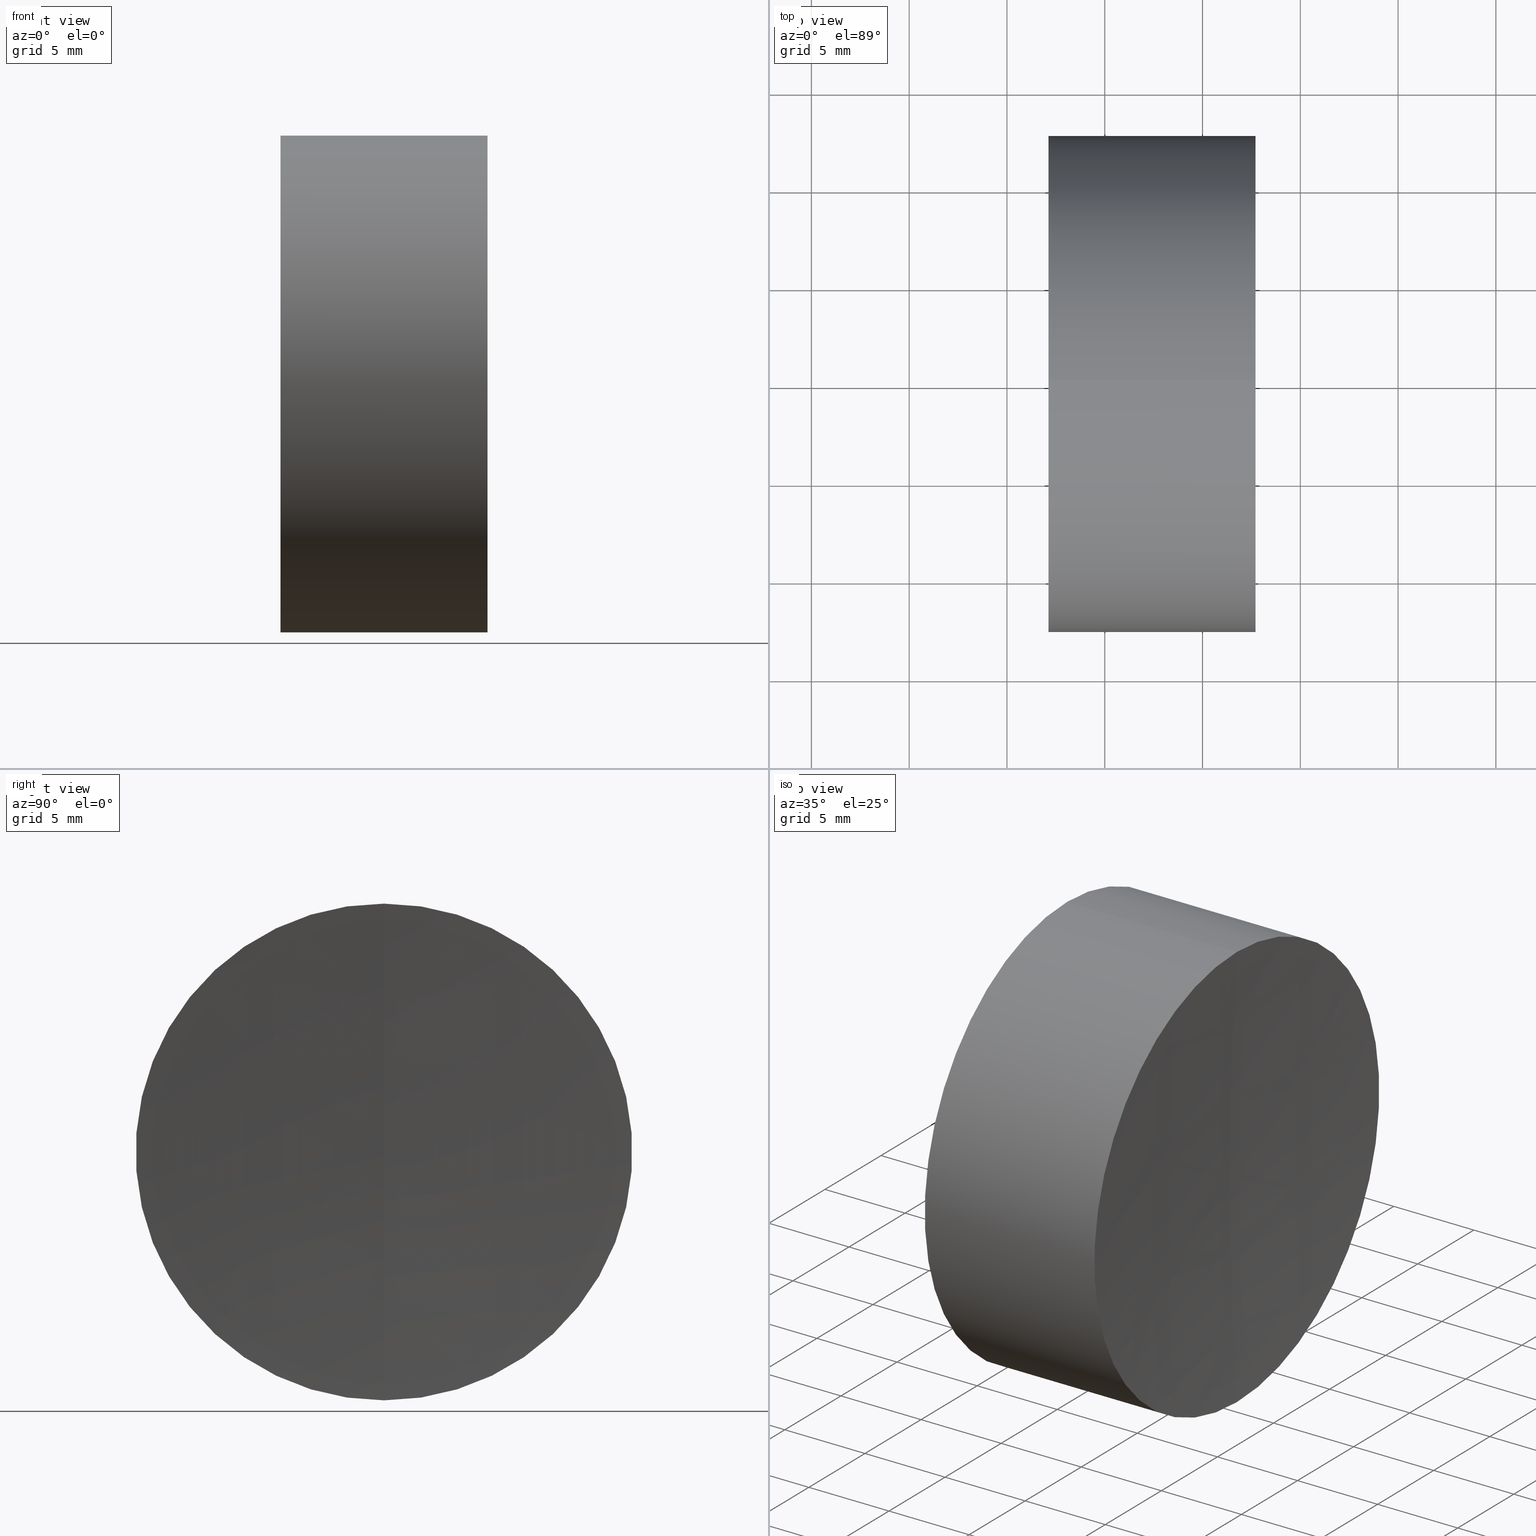
[diagram: canonical four-view strip — front | top / right | iso, engineering-drawing reading convention]
A machine part, canonical four-view strip (front | top / right | iso — engineering-drawing reading convention). The complete STEP part file that produces these views, byte-faithful:
ISO-10303-21;
HEADER;
FILE_DESCRIPTION (( 'STEP AP214' ),
    '1' );
FILE_NAME ('145197.STEP',
    '2019-06-13T07:11:28',
    ( 'user' ),
    ( '΢���й�' ),
    'SwSTEP 2.0',
    'SolidWorks 2016',
    '' );
FILE_SCHEMA (( 'AUTOMOTIVE_DESIGN' ));
ENDSEC;

DATA;
#1 = EDGE_CURVE ( 'NONE', #156, #158, #60, .T. ) ;
#2 = ORIENTED_EDGE ( 'NONE', *, *, #235, .T. ) ;
#3 = CARTESIAN_POINT ( 'NONE',  ( 267.7101150449228700, 0.0000000000000000000, 0.0000000000000000000 ) ) ;
#4 = DIRECTION ( 'NONE',  ( 0.0000000000000000000, 0.0000000000000000000, 1.000000000000000000 ) ) ;
#5 = SURFACE_STYLE_FILL_AREA ( #319 ) ;
#6 = ADVANCED_FACE ( 'NONE', ( #342 ), #205, .F. ) ;
#7 = EDGE_LOOP ( 'NONE', ( #76, #23, #260 ) ) ;
#8 = ORIENTED_EDGE ( 'NONE', *, *, #295, .T. ) ;
#9 = DIRECTION ( 'NONE',  ( 0.0000000000000000000, 1.000000000000000000, 0.0000000000000000000 ) ) ;
#10 = DIRECTION ( 'NONE',  ( -0.0000000000000000000, -1.000000000000000000, -0.0000000000000000000 ) ) ;
#11 =( GEOMETRIC_REPRESENTATION_CONTEXT ( 3 ) GLOBAL_UNCERTAINTY_ASSIGNED_CONTEXT ( ( #94 ) ) GLOBAL_UNIT_ASSIGNED_CONTEXT ( ( #87, #56, #227 ) ) REPRESENTATION_CONTEXT ( 'NONE', 'WORKASPACE' ) );
#12 = AXIS2_PLACEMENT_3D ( 'NONE', #249, #59, #230 ) ;
#13 = DIRECTION ( 'NONE',  ( 0.0000000000000000000, 0.0000000000000000000, 1.000000000000000000 ) ) ;
#14 = CARTESIAN_POINT ( 'NONE',  ( 233.1833917553725000, 0.0000000000000000000, -7.846294210438532900E-022 ) ) ;
#15 = ORIENTED_EDGE ( 'NONE', *, *, #235, .F. ) ;
#16 = EDGE_CURVE ( 'NONE', #320, #158, #213, .T. ) ;
#17 = ORIENTED_EDGE ( 'NONE', *, *, #67, .F. ) ;
#18 =( NAMED_UNIT ( * ) PLANE_ANGLE_UNIT ( ) SI_UNIT ( $, .RADIAN. ) );
#19 = FACE_OUTER_BOUND ( 'NONE', #133, .T. ) ;
#20 = DIRECTION ( 'NONE',  ( 0.0000000000000000000, -1.000000000000000000, 0.0000000000000000000 ) ) ;
#21 = FACE_OUTER_BOUND ( 'NONE', #191, .T. ) ;
#22 = AXIS2_PLACEMENT_3D ( 'NONE', #331, #143, #305 ) ;
#23 = ORIENTED_EDGE ( 'NONE', *, *, #126, .F. ) ;
#24 = AXIS2_PLACEMENT_3D ( 'NONE', #310, #117, #283 ) ;
#25 = CARTESIAN_POINT ( 'NONE',  ( 267.7101150449228700, 0.0000000000000000000, 12.69999999999999800 ) ) ;
#26 = UNCERTAINTY_MEASURE_WITH_UNIT (LENGTH_MEASURE( 1.000000000000000100E-005 ), #318, 'distance_accuracy_value', 'NONE');
#27 = CARTESIAN_POINT ( 'NONE',  ( 267.7101150449228700, 0.0000000000000000000, 0.0000000000000000000 ) ) ;
#28 = DIRECTION ( 'NONE',  ( 0.0000000000000000000, 0.0000000000000000000, 1.000000000000000000 ) ) ;
#29 = EDGE_CURVE ( 'NONE', #158, #320, #47, .T. ) ;
#30 = ADVANCED_FACE ( 'NONE', ( #337 ), #264, .F. ) ;
#31 = DIRECTION ( 'NONE',  ( 0.0000000000000000000, 0.0000000000000000000, 1.000000000000000000 ) ) ;
#32 = ORIENTED_EDGE ( 'NONE', *, *, #281, .F. ) ;
#33 = CARTESIAN_POINT ( 'NONE',  ( 265.4434669434605200, 0.0000000000000000000, 12.69999999999995000 ) ) ;
#34 = AXIS2_PLACEMENT_3D ( 'NONE', #258, #155, #35 ) ;
#35 = DIRECTION ( 'NONE',  ( 0.0000000000000000000, 0.0000000000000000000, -1.000000000000000000 ) ) ;
#36 = CIRCLE ( 'NONE', #132, 27.10000000000000500 ) ;
#37 = CARTESIAN_POINT ( 'NONE',  ( 257.1233165672844600, 1.555301434917135700E-015, -12.69999999999997400 ) ) ;
#38 = DIRECTION ( 'NONE',  ( -0.0000000000000000000, 1.000000000000000000, 0.0000000000000000000 ) ) ;
#39 = FACE_OUTER_BOUND ( 'NONE', #62, .T. ) ;
#40 = ORIENTED_EDGE ( 'NONE', *, *, #108, .F. ) ;
#41 = AXIS2_PLACEMENT_3D ( 'NONE', #142, #304, #112 ) ;
#42 = AXIS2_PLACEMENT_3D ( 'NONE', #173, #9, #31 ) ;
#43 = FACE_OUTER_BOUND ( 'NONE', #49, .T. ) ;
#44 = SURFACE_STYLE_USAGE ( .BOTH. , #239 ) ;
#45 = EDGE_CURVE ( 'NONE', #247, #120, #128, .T. ) ;
#46 = CIRCLE ( 'NONE', #22, 189.1999999999999900 ) ;
#47 = CIRCLE ( 'NONE', #12, 12.70000000000004500 ) ;
#48 = CARTESIAN_POINT ( 'NONE',  ( 257.1233165672844600, 0.0000000000000000000, 0.0000000000000000000 ) ) ;
#49 = EDGE_LOOP ( 'NONE', ( #32, #208, #252 ) ) ;
#50 = DIRECTION ( 'NONE',  ( -1.000000000000000000, -0.0000000000000000000, -0.0000000000000000000 ) ) ;
#51 = PRODUCT_DEFINITION_SHAPE ( 'NONE', 'NONE',  #177 ) ;
#52 = VERTEX_POINT ( 'NONE', #204 ) ;
#53 = AXIS2_PLACEMENT_3D ( 'NONE', #75, #38, #99 ) ;
#54 = CIRCLE ( 'NONE', #34, 27.10000000000000500 ) ;
#55 = ORIENTED_EDGE ( 'NONE', *, *, #147, .F. ) ;
#56 =( NAMED_UNIT ( * ) PLANE_ANGLE_UNIT ( ) SI_UNIT ( $, .RADIAN. ) );
#57 = FACE_OUTER_BOUND ( 'NONE', #232, .T. ) ;
#58 = ADVANCED_FACE ( 'NONE', ( #39 ), #190, .T. ) ;
#59 = DIRECTION ( 'NONE',  ( -1.000000000000000000, -0.0000000000000000000, 1.836970198721029700E-016 ) ) ;
#60 = CIRCLE ( 'NONE', #312, 27.09999999999998000 ) ;
#61 = DIRECTION ( 'NONE',  ( 0.0000000000000000000, 0.0000000000000000000, 1.000000000000000000 ) ) ;
#62 = EDGE_LOOP ( 'NONE', ( #81, #244, #211 ) ) ;
#63 = PRESENTATION_STYLE_ASSIGNMENT (( #44 ) ) ;
#64 = DIRECTION ( 'NONE',  ( 0.0000000000000000000, 1.000000000000000000, 0.0000000000000000000 ) ) ;
#65 = DIRECTION ( 'NONE',  ( 0.0000000000000000000, 0.0000000000000000000, 1.000000000000000000 ) ) ;
#66 = AXIS2_PLACEMENT_3D ( 'NONE', #27, #196, #4 ) ;
#67 = EDGE_CURVE ( 'NONE', #136, #176, #326, .T. ) ;
#68 = AXIS2_PLACEMENT_3D ( 'NONE', #170, #333, #145 ) ;
#69 = DIRECTION ( 'NONE',  ( 0.0000000000000000000, -1.224646799147353500E-016, 1.000000000000000000 ) ) ;
#70 = MANIFOLD_SOLID_BREP ( '��ת3', #292 ) ;
#71 = CARTESIAN_POINT ( 'NONE',  ( 289.3833917553725400, 0.0000000000000000000, -7.774855670941042100E-022 ) ) ;
#72 = FACE_OUTER_BOUND ( 'NONE', #111, .T. ) ;
#73 = DIRECTION ( 'NONE',  ( -1.000000000000000000, -0.0000000000000000000, -0.0000000000000000000 ) ) ;
#74 = EDGE_CURVE ( 'NONE', #328, #52, #46, .T. ) ;
#75 = CARTESIAN_POINT ( 'NONE',  ( 233.1833917553725000, 0.0000000000000000000, -7.846294210438532900E-022 ) ) ;
#76 = ORIENTED_EDGE ( 'NONE', *, *, #74, .F. ) ;
#77 = AXIS2_PLACEMENT_3D ( 'NONE', #96, #289, #13 ) ;
#78 = COLOUR_RGB ( '',1.000000000000000000, 1.000000000000000000, 1.000000000000000000 ) ;
#79 = APPLICATION_PROTOCOL_DEFINITION ( 'draft international standard', 'automotive_design', 1998, #269 ) ;
#80 = FILL_AREA_STYLE ('',( #302 ) ) ;
#81 = ORIENTED_EDGE ( 'NONE', *, *, #253, .T. ) ;
#82 = CARTESIAN_POINT ( 'NONE',  ( -0.8160621761658039000, 0.0000000000000000000, 0.0000000000000000000 ) ) ;
#83 = DIRECTION ( 'NONE',  ( 0.0000000000000000000, 1.224646799147353500E-016, -1.000000000000000000 ) ) ;
#84 = AXIS2_PLACEMENT_3D ( 'NONE', #199, #168, #28 ) ;
#85 = AXIS2_PLACEMENT_3D ( 'NONE', #172, #336, #248 ) ;
#86 = CARTESIAN_POINT ( 'NONE',  ( 265.4434669434605200, 1.555301434917132300E-015, -12.69999999999995000 ) ) ;
#87 =( LENGTH_UNIT ( ) NAMED_UNIT ( * ) SI_UNIT ( .MILLI., .METRE. ) );
#88 = ADVANCED_FACE ( 'NONE', ( #125 ), #270, .T. ) ;
#89 = ORIENTED_EDGE ( 'NONE', *, *, #1, .T. ) ;
#90 = EDGE_CURVE ( 'NONE', #328, #129, #340, .T. ) ;
#91 = ORIENTED_EDGE ( 'NONE', *, *, #147, .T. ) ;
#92 = CARTESIAN_POINT ( 'NONE',  ( 260.2833917553724600, 0.0000000000000000000, -3.318793610318745300E-015 ) ) ;
#93 = DIRECTION ( 'NONE',  ( 2.249639673992786400E-032, 1.000000000000000000, 1.224646799147353200E-016 ) ) ;
#94 = UNCERTAINTY_MEASURE_WITH_UNIT (LENGTH_MEASURE( 1.000000000000000100E-005 ), #87, 'distance_accuracy_value', 'NONE');
#95 = AXIS2_PLACEMENT_3D ( 'NONE', #121, #73, #65 ) ;
#96 = CARTESIAN_POINT ( 'NONE',  ( 265.4434669434605200, 0.0000000000000000000, 0.0000000000000000000 ) ) ;
#97 = ORIENTED_EDGE ( 'NONE', *, *, #126, .T. ) ;
#98 = SHAPE_DEFINITION_REPRESENTATION ( #51, #321 ) ;
#99 = DIRECTION ( 'NONE',  ( 0.0000000000000000000, 0.0000000000000000000, 1.000000000000000000 ) ) ;
#100 = DIRECTION ( 'NONE',  ( 1.878145495644173900E-016, 0.0000000000000000000, 1.000000000000000000 ) ) ;
#101 = ORIENTED_EDGE ( 'NONE', *, *, #281, .T. ) ;
#102 =( GEOMETRIC_REPRESENTATION_CONTEXT ( 3 ) GLOBAL_UNCERTAINTY_ASSIGNED_CONTEXT ( ( #130 ) ) GLOBAL_UNIT_ASSIGNED_CONTEXT ( ( #218, #18, #187 ) ) REPRESENTATION_CONTEXT ( 'NONE', 'WORKASPACE' ) );
#103 = AXIS2_PLACEMENT_3D ( 'NONE', #3, #165, #288 ) ;
#104 = STYLED_ITEM ( 'NONE', ( #110 ), #70 ) ;
#105 = PRODUCT_CONTEXT ( 'NONE', #271, 'mechanical' ) ;
#106 = FACE_OUTER_BOUND ( 'NONE', #162, .T. ) ;
#107 = ORIENTED_EDGE ( 'NONE', *, *, #298, .F. ) ;
#108 = EDGE_CURVE ( 'NONE', #129, #52, #296, .T. ) ;
#109 = DIRECTION ( 'NONE',  ( -0.0000000000000000000, 1.000000000000000000, 0.0000000000000000000 ) ) ;
#110 = PRESENTATION_STYLE_ASSIGNMENT (( #280 ) ) ;
#111 = EDGE_LOOP ( 'NONE', ( #91, #339, #285, #206 ) ) ;
#112 = DIRECTION ( 'NONE',  ( 0.0000000000000000000, 0.0000000000000000000, -1.000000000000000000 ) ) ;
#113 = AXIS2_PLACEMENT_3D ( 'NONE', #254, #275, #83 ) ;
#114 = SPHERICAL_SURFACE ( 'NONE', #153, 27.10000000000000500 ) ;
#115 = SURFACE_SIDE_STYLE ('',( #250 ) ) ;
#116 = ADVANCED_FACE ( 'NONE', ( #203 ), #282, .F. ) ;
#117 = DIRECTION ( 'NONE',  ( -1.000000000000000000, -0.0000000000000000000, 1.836970198721029700E-016 ) ) ;
#118 = DIRECTION ( 'NONE',  ( 0.0000000000000000000, 0.0000000000000000000, 1.000000000000000000 ) ) ;
#119 = COLOUR_RGB ( '',1.000000000000000000, 1.000000000000000000, 1.000000000000000000 ) ;
#120 = VERTEX_POINT ( 'NONE', #166 ) ;
#121 = CARTESIAN_POINT ( 'NONE',  ( 265.4434669434605200, 0.0000000000000000000, 0.0000000000000000000 ) ) ;
#122 = AXIS2_PLACEMENT_3D ( 'NONE', #225, #330, #277 ) ;
#123 = PRESENTATION_LAYER_ASSIGNMENT (  '', '', ( #104 ) ) ;
#124 = CIRCLE ( 'NONE', #95, 12.69999999999995100 ) ;
#125 = FACE_OUTER_BOUND ( 'NONE', #221, .T. ) ;
#126 = EDGE_CURVE ( 'NONE', #129, #328, #135, .T. ) ;
#127 = DIRECTION ( 'NONE',  ( 0.0000000000000000000, 0.0000000000000000000, 1.000000000000000000 ) ) ;
#128 = CIRCLE ( 'NONE', #24, 12.70000000000004700 ) ;
#129 = VERTEX_POINT ( 'NONE', #25 ) ;
#130 = UNCERTAINTY_MEASURE_WITH_UNIT (LENGTH_MEASURE( 1.000000000000000100E-005 ), #218, 'distance_accuracy_value', 'NONE');
#131 = LINE ( 'NONE', #37, #267 ) ;
#132 = AXIS2_PLACEMENT_3D ( 'NONE', #303, #109, #273 ) ;
#133 = EDGE_LOOP ( 'NONE', ( #97, #2, #313, #278 ) ) ;
#134 = DIRECTION ( 'NONE',  ( 1.000000000000000000, 0.0000000000000000000, 0.0000000000000000000 ) ) ;
#135 = CIRCLE ( 'NONE', #103, 12.69999999999999800 ) ;
#136 = VERTEX_POINT ( 'NONE', #86 ) ;
#137 = DIRECTION ( 'NONE',  ( 0.0000000000000000000, 0.0000000000000000000, 1.000000000000000000 ) ) ;
#138 = ORIENTED_EDGE ( 'NONE', *, *, #74, .T. ) ;
#139 = DIRECTION ( 'NONE',  ( -1.000000000000000000, -0.0000000000000000000, 1.836970198721029700E-016 ) ) ;
#140 = AXIS2_PLACEMENT_3D ( 'NONE', #175, #179, #255 ) ;
#141 = MECHANICAL_DESIGN_GEOMETRIC_PRESENTATION_REPRESENTATION (  '', ( #104 ), #11 ) ;
#142 = CARTESIAN_POINT ( 'NONE',  ( 456.4833917553725100, 0.0000000000000000000, -2.441456779568677200E-014 ) ) ;
#143 = DIRECTION ( 'NONE',  ( -0.0000000000000000000, 1.000000000000000000, 1.224646799147353200E-016 ) ) ;
#144 = FACE_OUTER_BOUND ( 'NONE', #286, .T. ) ;
#145 = DIRECTION ( 'NONE',  ( 0.0000000000000000000, -1.224646799147353500E-016, 1.000000000000000000 ) ) ;
#146 = ADVANCED_FACE ( 'NONE', ( #57 ), #262, .T. ) ;
#147 = EDGE_CURVE ( 'NONE', #120, #247, #347, .T. ) ;
#148 = SURFACE_STYLE_FILL_AREA ( #80 ) ;
#149 = CARTESIAN_POINT ( 'NONE',  ( 257.1233165672844600, 0.0000000000000000000, -4.738269518283348700E-014 ) ) ;
#150 = VERTEX_POINT ( 'NONE', #33 ) ;
#151 = DIRECTION ( 'NONE',  ( 0.0000000000000000000, 1.000000000000000000, 0.0000000000000000000 ) ) ;
#152 = CARTESIAN_POINT ( 'NONE',  ( 262.2833917553725200, 0.0000000000000000000, 1.659395635359096900E-015 ) ) ;
#153 = AXIS2_PLACEMENT_3D ( 'NONE', #71, #10, #243 ) ;
#154 = CYLINDRICAL_SURFACE ( 'NONE', #233, 12.70000000000004700 ) ;
#155 = DIRECTION ( 'NONE',  ( 0.0000000000000000000, -1.000000000000000000, 0.0000000000000000000 ) ) ;
#156 = VERTEX_POINT ( 'NONE', #92 ) ;
#157 =( NAMED_UNIT ( * ) PLANE_ANGLE_UNIT ( ) SI_UNIT ( $, .RADIAN. ) );
#158 = VERTEX_POINT ( 'NONE', #183 ) ;
#159 = AXIS2_PLACEMENT_3D ( 'NONE', #161, #323, #134 ) ;
#160 = AXIS2_PLACEMENT_3D ( 'NONE', #193, #64, #251 ) ;
#161 = CARTESIAN_POINT ( 'NONE',  ( 0.0000000000000000000, 0.0000000000000000000, 0.0000000000000000000 ) ) ;
#162 = EDGE_LOOP ( 'NONE', ( #300, #214, #346, #234 ) ) ;
#163 =( NAMED_UNIT ( * ) PLANE_ANGLE_UNIT ( ) SI_UNIT ( $, .RADIAN. ) );
#164 = DIRECTION ( 'NONE',  ( -1.000000000000000000, -0.0000000000000000000, 1.836970198721029700E-016 ) ) ;
#165 = DIRECTION ( 'NONE',  ( -1.000000000000000000, -0.0000000000000000000, -0.0000000000000000000 ) ) ;
#166 = CARTESIAN_POINT ( 'NONE',  ( 265.4434669434605200, 0.0000000000000000000, 12.69999999999999900 ) ) ;
#167 = AXIS2_PLACEMENT_3D ( 'NONE', #219, #20, #188 ) ;
#168 = DIRECTION ( 'NONE',  ( -1.000000000000000000, -0.0000000000000000000, -0.0000000000000000000 ) ) ;
#169 = EDGE_LOOP ( 'NONE', ( #55, #101, #107 ) ) ;
#170 = CARTESIAN_POINT ( 'NONE',  ( 289.3833917553725400, 0.0000000000000000000, -7.774855670941042100E-022 ) ) ;
#171 = ADVANCED_FACE ( 'NONE', ( #144 ), #217, .F. ) ;
#172 = CARTESIAN_POINT ( 'NONE',  ( 289.3833917553725400, 0.0000000000000000000, -7.774855670941042100E-022 ) ) ;
#173 = CARTESIAN_POINT ( 'NONE',  ( 456.4833917553725100, 0.0000000000000000000, -2.441456779568677200E-014 ) ) ;
#174 = CARTESIAN_POINT ( 'NONE',  ( 456.4833917553725100, 0.0000000000000000000, -2.441456779568677200E-014 ) ) ;
#175 = CARTESIAN_POINT ( 'NONE',  ( 265.4434669434605200, 0.0000000000000000000, -4.891108201182477700E-014 ) ) ;
#176 = VERTEX_POINT ( 'NONE', #152 ) ;
#177 = PRODUCT_DEFINITION ( 'δ֪', '', #192, #197 ) ;
#178 = PRESENTATION_LAYER_ASSIGNMENT (  '', '', ( #216 ) ) ;
#179 = DIRECTION ( 'NONE',  ( -1.000000000000000000, -0.0000000000000000000, 1.836970198721029700E-016 ) ) ;
#180 = VECTOR ( 'NONE', #164, 1000.000000000000000 ) ;
#181 = CARTESIAN_POINT ( 'NONE',  ( 265.4434669434605200, 1.555301434917144500E-015, -12.70000000000009700 ) ) ;
#182 = SURFACE_STYLE_USAGE ( .BOTH. , #341 ) ;
#183 = CARTESIAN_POINT ( 'NONE',  ( 257.1233165672844600, 1.555301434917144000E-015, -12.70000000000004900 ) ) ;
#184 = ORIENTED_EDGE ( 'NONE', *, *, #259, .T. ) ;
#185 =( GEOMETRIC_REPRESENTATION_CONTEXT ( 3 ) GLOBAL_UNCERTAINTY_ASSIGNED_CONTEXT ( ( #195 ) ) GLOBAL_UNIT_ASSIGNED_CONTEXT ( ( #241, #163, #324 ) ) REPRESENTATION_CONTEXT ( 'NONE', 'WORKASPACE' ) );
#186 = LINE ( 'NONE', #209, #246 ) ;
#187 =( NAMED_UNIT ( * ) SI_UNIT ( $, .STERADIAN. ) SOLID_ANGLE_UNIT ( ) );
#188 = DIRECTION ( 'NONE',  ( 0.0000000000000000000, 0.0000000000000000000, -1.000000000000000000 ) ) ;
#189 = CARTESIAN_POINT ( 'NONE',  ( 267.7101150449228700, 1.555301434917138200E-015, -12.69999999999999800 ) ) ;
#190 = SPHERICAL_SURFACE ( 'NONE', #85, 27.10000000000000500 ) ;
#191 = EDGE_LOOP ( 'NONE', ( #240, #89, #200 ) ) ;
#192 = PRODUCT_DEFINITION_FORMATION_WITH_SPECIFIED_SOURCE ( '�κ�', '', #236, .NOT_KNOWN. ) ;
#193 = CARTESIAN_POINT ( 'NONE',  ( 289.3833917553725400, 0.0000000000000000000, -7.774855670941042100E-022 ) ) ;
#194 = AXIS2_PLACEMENT_3D ( 'NONE', #14, #343, #127 ) ;
#195 = UNCERTAINTY_MEASURE_WITH_UNIT (LENGTH_MEASURE( 1.000000000000000100E-005 ), #241, 'distance_accuracy_value', 'NONE');
#196 = DIRECTION ( 'NONE',  ( -1.000000000000000000, -0.0000000000000000000, -0.0000000000000000000 ) ) ;
#197 = PRODUCT_DEFINITION_CONTEXT ( 'detailed design', #269, 'design' ) ;
#198 = LINE ( 'NONE', #315, #256 ) ;
#199 = CARTESIAN_POINT ( 'NONE',  ( 257.1233165672844600, 0.0000000000000000000, 0.0000000000000000000 ) ) ;
#200 = ORIENTED_EDGE ( 'NONE', *, *, #29, .T. ) ;
#201 = FILL_AREA_STYLE_COLOUR ( '', #119 ) ;
#202 = ADVANCED_FACE ( 'NONE', ( #72 ), #154, .T. ) ;
#203 = FACE_OUTER_BOUND ( 'NONE', #169, .T. ) ;
#204 = CARTESIAN_POINT ( 'NONE',  ( 267.2833917553725200, 0.0000000000000000000, -1.282940907575281200E-014 ) ) ;
#205 = SPHERICAL_SURFACE ( 'NONE', #345, 189.1999999999999900 ) ;
#206 = ORIENTED_EDGE ( 'NONE', *, *, #276, .F. ) ;
#207 = DIRECTION ( 'NONE',  ( -1.000000000000000000, -0.0000000000000000000, 1.836970198721029700E-016 ) ) ;
#208 = ORIENTED_EDGE ( 'NONE', *, *, #45, .F. ) ;
#209 = CARTESIAN_POINT ( 'NONE',  ( 257.1233165672844600, 0.0000000000000000000, 12.69999999999997400 ) ) ;
#210 = SPHERICAL_SURFACE ( 'NONE', #53, 27.09999999999998000 ) ;
#211 = ORIENTED_EDGE ( 'NONE', *, *, #237, .F. ) ;
#212 = AXIS2_PLACEMENT_3D ( 'NONE', #82, #139, #327 ) ;
#213 = CIRCLE ( 'NONE', #329, 12.70000000000004500 ) ;
#214 = ORIENTED_EDGE ( 'NONE', *, *, #45, .T. ) ;
#215 = PRODUCT_RELATED_PRODUCT_CATEGORY ( 'part', '', ( #236 ) ) ;
#216 = STYLED_ITEM ( 'NONE', ( #290 ), #224 ) ;
#217 = SPHERICAL_SURFACE ( 'NONE', #194, 27.09999999999998000 ) ;
#218 =( LENGTH_UNIT ( ) NAMED_UNIT ( * ) SI_UNIT ( .MILLI., .METRE. ) );
#219 = CARTESIAN_POINT ( 'NONE',  ( 233.1833917553725000, 0.0000000000000000000, -7.846294210438532900E-022 ) ) ;
#220 = COLOUR_RGB ( '',1.000000000000000000, 1.000000000000000000, 1.000000000000000000 ) ;
#221 = EDGE_LOOP ( 'NONE', ( #15, #344, #8, #307 ) ) ;
#222 = CARTESIAN_POINT ( 'NONE',  ( 257.1233165672844600, 0.0000000000000000000, 12.69999999999999900 ) ) ;
#223 = CARTESIAN_POINT ( 'NONE',  ( 262.2833917553725200, 0.0000000000000000000, 3.318792048203760200E-015 ) ) ;
#224 = MANIFOLD_SOLID_BREP ( '��ת1', #268 ) ;
#225 = CARTESIAN_POINT ( 'NONE',  ( 289.3833917553725400, 0.0000000000000000000, -7.774855670941042100E-022 ) ) ;
#226 = AXIS2_PLACEMENT_3D ( 'NONE', #48, #325, #137 ) ;
#227 =( NAMED_UNIT ( * ) SI_UNIT ( $, .STERADIAN. ) SOLID_ANGLE_UNIT ( ) );
#228 = ADVANCED_FACE ( 'NONE', ( #21 ), #210, .F. ) ;
#229 = ORIENTED_EDGE ( 'NONE', *, *, #90, .F. ) ;
#230 = DIRECTION ( 'NONE',  ( 0.0000000000000000000, 0.0000000000000000000, 1.000000000000000000 ) ) ;
#231 = ORIENTED_EDGE ( 'NONE', *, *, #1, .F. ) ;
#232 = EDGE_LOOP ( 'NONE', ( #17, #184, #294 ) ) ;
#233 = AXIS2_PLACEMENT_3D ( 'NONE', #293, #207, #100 ) ;
#234 = ORIENTED_EDGE ( 'NONE', *, *, #29, .F. ) ;
#235 = EDGE_CURVE ( 'NONE', #328, #136, #131, .T. ) ;
#236 = PRODUCT ( '145197', '145197', '', ( #105 ) ) ;
#237 = EDGE_CURVE ( 'NONE', #150, #176, #54, .T. ) ;
#238 = CYLINDRICAL_SURFACE ( 'NONE', #212, 12.70000000000004700 ) ;
#239 = SURFACE_SIDE_STYLE ('',( #148 ) ) ;
#240 = ORIENTED_EDGE ( 'NONE', *, *, #335, .F. ) ;
#241 =( LENGTH_UNIT ( ) NAMED_UNIT ( * ) SI_UNIT ( .MILLI., .METRE. ) );
#242 = CARTESIAN_POINT ( 'NONE',  ( -0.8160621761658063400, 1.555301434917144500E-015, -12.70000000000004700 ) ) ;
#243 = DIRECTION ( 'NONE',  ( 0.0000000000000000000, 0.0000000000000000000, -1.000000000000000000 ) ) ;
#244 = ORIENTED_EDGE ( 'NONE', *, *, #67, .T. ) ;
#245 = MECHANICAL_DESIGN_GEOMETRIC_PRESENTATION_REPRESENTATION (  '', ( #216 ), #266 ) ;
#246 = VECTOR ( 'NONE', #50, 1000.000000000000000 ) ;
#247 = VERTEX_POINT ( 'NONE', #181 ) ;
#248 = DIRECTION ( 'NONE',  ( 0.0000000000000000000, 0.0000000000000000000, 1.000000000000000000 ) ) ;
#249 = CARTESIAN_POINT ( 'NONE',  ( 257.1233165672844600, 0.0000000000000000000, -4.738269518283348700E-014 ) ) ;
#250 = SURFACE_STYLE_FILL_AREA ( #306 ) ;
#251 = DIRECTION ( 'NONE',  ( 0.0000000000000000000, 0.0000000000000000000, 1.000000000000000000 ) ) ;
#252 = ORIENTED_EDGE ( 'NONE', *, *, #298, .T. ) ;
#253 = EDGE_CURVE ( 'NONE', #150, #136, #338, .T. ) ;
#254 = CARTESIAN_POINT ( 'NONE',  ( 289.3833917553725400, 0.0000000000000000000, -7.774855670941042100E-022 ) ) ;
#255 = DIRECTION ( 'NONE',  ( 0.0000000000000000000, 0.0000000000000000000, 1.000000000000000000 ) ) ;
#256 = VECTOR ( 'NONE', #314, 1000.000000000000000 ) ;
#257 = STYLED_ITEM ( 'NONE', ( #63 ), #321 ) ;
#258 = CARTESIAN_POINT ( 'NONE',  ( 289.3833917553725400, 0.0000000000000000000, -7.774855670941042100E-022 ) ) ;
#259 = EDGE_CURVE ( 'NONE', #136, #150, #124, .T. ) ;
#260 = ORIENTED_EDGE ( 'NONE', *, *, #108, .T. ) ;
#261 = DIRECTION ( 'NONE',  ( -1.000000000000000000, -0.0000000000000000000, -0.0000000000000000000 ) ) ;
#262 = SPHERICAL_SURFACE ( 'NONE', #160, 27.10000000000000500 ) ;
#263 = FILL_AREA_STYLE_COLOUR ( '', #78 ) ;
#264 = SPHERICAL_SURFACE ( 'NONE', #42, 189.1999999999999900 ) ;
#265 = ORIENTED_EDGE ( 'NONE', *, *, #16, .T. ) ;
#266 =( GEOMETRIC_REPRESENTATION_CONTEXT ( 3 ) GLOBAL_UNCERTAINTY_ASSIGNED_CONTEXT ( ( #26 ) ) GLOBAL_UNIT_ASSIGNED_CONTEXT ( ( #318, #157, #291 ) ) REPRESENTATION_CONTEXT ( 'NONE', 'WORKASPACE' ) );
#267 = VECTOR ( 'NONE', #261, 1000.000000000000000 ) ;
#268 = CLOSED_SHELL ( 'NONE', ( #116, #202, #228, #171, #308, #284 ) ) ;
#269 = APPLICATION_CONTEXT ( 'automotive_design' ) ;
#270 = CYLINDRICAL_SURFACE ( 'NONE', #84, 12.69999999999997400 ) ;
#271 = APPLICATION_CONTEXT ( 'automotive_design' ) ;
#272 = ORIENTED_EDGE ( 'NONE', *, *, #335, .T. ) ;
#273 = DIRECTION ( 'NONE',  ( 0.0000000000000000000, 0.0000000000000000000, 1.000000000000000000 ) ) ;
#274 = EDGE_LOOP ( 'NONE', ( #229, #138, #40 ) ) ;
#275 = DIRECTION ( 'NONE',  ( -2.249639673992786400E-032, -1.000000000000000000, -1.224646799147353200E-016 ) ) ;
#276 = EDGE_CURVE ( 'NONE', #120, #320, #198, .T. ) ;
#277 = DIRECTION ( 'NONE',  ( 0.0000000000000000000, 0.0000000000000000000, -1.000000000000000000 ) ) ;
#278 = ORIENTED_EDGE ( 'NONE', *, *, #295, .F. ) ;
#279 = PRESENTATION_LAYER_ASSIGNMENT (  '', '', ( #257 ) ) ;
#280 = SURFACE_STYLE_USAGE ( .BOTH. , #115 ) ;
#281 = EDGE_CURVE ( 'NONE', #120, #301, #332, .T. ) ;
#282 = SPHERICAL_SURFACE ( 'NONE', #122, 27.10000000000000500 ) ;
#283 = DIRECTION ( 'NONE',  ( 0.0000000000000000000, 0.0000000000000000000, 1.000000000000000000 ) ) ;
#284 = ADVANCED_FACE ( 'NONE', ( #43 ), #114, .F. ) ;
#285 = ORIENTED_EDGE ( 'NONE', *, *, #16, .F. ) ;
#286 = EDGE_LOOP ( 'NONE', ( #231, #272, #265 ) ) ;
#287 = CARTESIAN_POINT ( 'NONE',  ( 233.1833917553725000, 0.0000000000000000000, -7.846294210438532900E-022 ) ) ;
#288 = DIRECTION ( 'NONE',  ( 0.0000000000000000000, 0.0000000000000000000, 1.000000000000000000 ) ) ;
#289 = DIRECTION ( 'NONE',  ( -1.000000000000000000, -0.0000000000000000000, -0.0000000000000000000 ) ) ;
#290 = PRESENTATION_STYLE_ASSIGNMENT (( #182 ) ) ;
#291 =( NAMED_UNIT ( * ) SI_UNIT ( $, .STERADIAN. ) SOLID_ANGLE_UNIT ( ) );
#292 = CLOSED_SHELL ( 'NONE', ( #6, #334, #58, #146, #88, #30 ) ) ;
#293 = CARTESIAN_POINT ( 'NONE',  ( -0.8160621761658039000, 0.0000000000000000000, 0.0000000000000000000 ) ) ;
#294 = ORIENTED_EDGE ( 'NONE', *, *, #237, .T. ) ;
#295 = EDGE_CURVE ( 'NONE', #129, #150, #186, .T. ) ;
#296 = CIRCLE ( 'NONE', #41, 189.1999999999999900 ) ;
#297 = MECHANICAL_DESIGN_GEOMETRIC_PRESENTATION_REPRESENTATION (  '', ( #257 ), #102 ) ;
#298 = EDGE_CURVE ( 'NONE', #247, #301, #36, .T. ) ;
#299 = APPLICATION_PROTOCOL_DEFINITION ( 'draft international standard', 'automotive_design', 1998, #271 ) ;
#300 = ORIENTED_EDGE ( 'NONE', *, *, #316, .F. ) ;
#301 = VERTEX_POINT ( 'NONE', #223 ) ;
#302 = FILL_AREA_STYLE_COLOUR ( '', #220 ) ;
#303 = CARTESIAN_POINT ( 'NONE',  ( 289.3833917553725400, 0.0000000000000000000, -7.774855670941042100E-022 ) ) ;
#304 = DIRECTION ( 'NONE',  ( 0.0000000000000000000, -1.000000000000000000, 0.0000000000000000000 ) ) ;
#305 = DIRECTION ( 'NONE',  ( 0.0000000000000000000, -1.224646799147353200E-016, 1.000000000000000000 ) ) ;
#306 = FILL_AREA_STYLE ('',( #201 ) ) ;
#307 = ORIENTED_EDGE ( 'NONE', *, *, #259, .F. ) ;
#308 = ADVANCED_FACE ( 'NONE', ( #106 ), #238, .T. ) ;
#309 = CYLINDRICAL_SURFACE ( 'NONE', #226, 12.69999999999997400 ) ;
#310 = CARTESIAN_POINT ( 'NONE',  ( 265.4434669434605200, 0.0000000000000000000, -4.891108201182477700E-014 ) ) ;
#311 = DIRECTION ( 'NONE',  ( -1.000000000000000000, -0.0000000000000000000, 1.836970198721029700E-016 ) ) ;
#312 = AXIS2_PLACEMENT_3D ( 'NONE', #287, #93, #69 ) ;
#313 = ORIENTED_EDGE ( 'NONE', *, *, #253, .F. ) ;
#314 = DIRECTION ( 'NONE',  ( -1.000000000000000000, -0.0000000000000000000, 1.836970198721029700E-016 ) ) ;
#315 = CARTESIAN_POINT ( 'NONE',  ( -0.8160621761658015700, 0.0000000000000000000, 12.70000000000004700 ) ) ;
#316 = EDGE_CURVE ( 'NONE', #247, #158, #317, .T. ) ;
#317 = LINE ( 'NONE', #242, #180 ) ;
#318 =( LENGTH_UNIT ( ) NAMED_UNIT ( * ) SI_UNIT ( .MILLI., .METRE. ) );
#319 = FILL_AREA_STYLE ('',( #263 ) ) ;
#320 = VERTEX_POINT ( 'NONE', #222 ) ;
#321 = ADVANCED_BREP_SHAPE_REPRESENTATION ( '145197', ( #224, #70, #159 ), #185 ) ;
#322 = CIRCLE ( 'NONE', #167, 27.09999999999998000 ) ;
#323 = DIRECTION ( 'NONE',  ( 0.0000000000000000000, 0.0000000000000000000, 1.000000000000000000 ) ) ;
#324 =( NAMED_UNIT ( * ) SI_UNIT ( $, .STERADIAN. ) SOLID_ANGLE_UNIT ( ) );
#325 = DIRECTION ( 'NONE',  ( -1.000000000000000000, -0.0000000000000000000, -0.0000000000000000000 ) ) ;
#326 = CIRCLE ( 'NONE', #68, 27.10000000000000500 ) ;
#327 = DIRECTION ( 'NONE',  ( 1.878145495644173900E-016, 0.0000000000000000000, 1.000000000000000000 ) ) ;
#328 = VERTEX_POINT ( 'NONE', #189 ) ;
#329 = AXIS2_PLACEMENT_3D ( 'NONE', #149, #311, #118 ) ;
#330 = DIRECTION ( 'NONE',  ( -0.0000000000000000000, -1.000000000000000000, -0.0000000000000000000 ) ) ;
#331 = CARTESIAN_POINT ( 'NONE',  ( 456.4833917553725100, 0.0000000000000000000, -2.441456779568677200E-014 ) ) ;
#332 = CIRCLE ( 'NONE', #113, 27.10000000000000500 ) ;
#333 = DIRECTION ( 'NONE',  ( -0.0000000000000000000, 1.000000000000000000, 1.224646799147353200E-016 ) ) ;
#334 = ADVANCED_FACE ( 'NONE', ( #19 ), #309, .T. ) ;
#335 = EDGE_CURVE ( 'NONE', #156, #320, #322, .T. ) ;
#336 = DIRECTION ( 'NONE',  ( 0.0000000000000000000, 1.000000000000000000, 0.0000000000000000000 ) ) ;
#337 = FACE_OUTER_BOUND ( 'NONE', #7, .T. ) ;
#338 = CIRCLE ( 'NONE', #77, 12.69999999999995100 ) ;
#339 = ORIENTED_EDGE ( 'NONE', *, *, #316, .T. ) ;
#340 = CIRCLE ( 'NONE', #66, 12.69999999999999800 ) ;
#341 = SURFACE_SIDE_STYLE ('',( #5 ) ) ;
#342 = FACE_OUTER_BOUND ( 'NONE', #274, .T. ) ;
#343 = DIRECTION ( 'NONE',  ( -0.0000000000000000000, 1.000000000000000000, 0.0000000000000000000 ) ) ;
#344 = ORIENTED_EDGE ( 'NONE', *, *, #90, .T. ) ;
#345 = AXIS2_PLACEMENT_3D ( 'NONE', #174, #151, #61 ) ;
#346 = ORIENTED_EDGE ( 'NONE', *, *, #276, .T. ) ;
#347 = CIRCLE ( 'NONE', #140, 12.70000000000004700 ) ;
ENDSEC;
END-ISO-10303-21;
